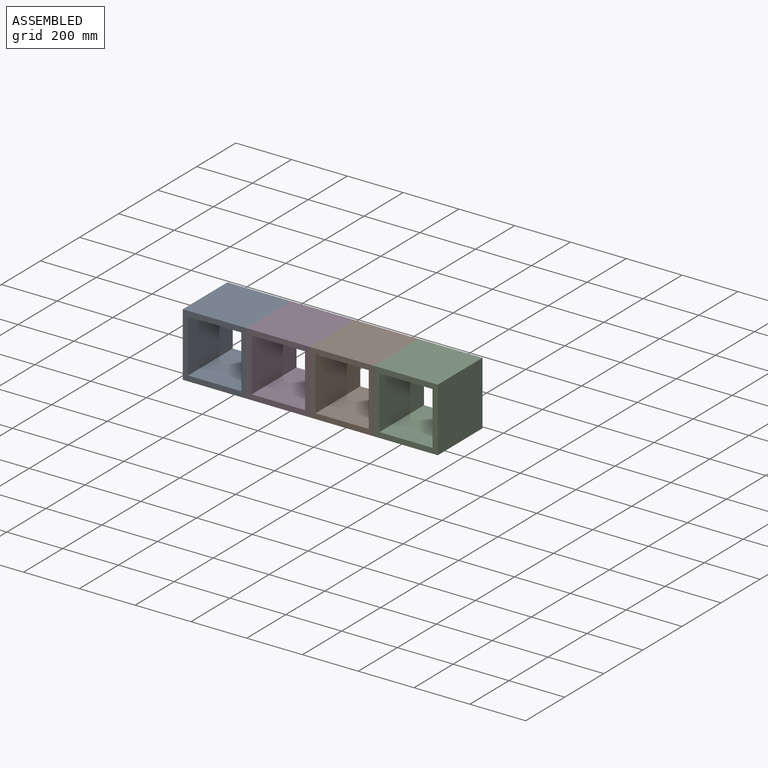
[diagram: assembled view]
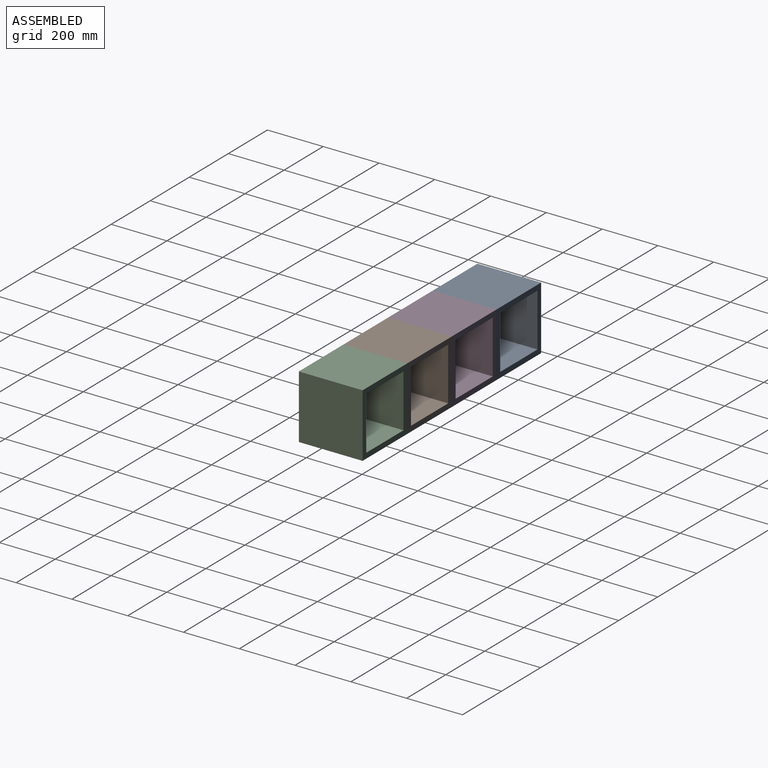
[diagram: assembled view, second angle]
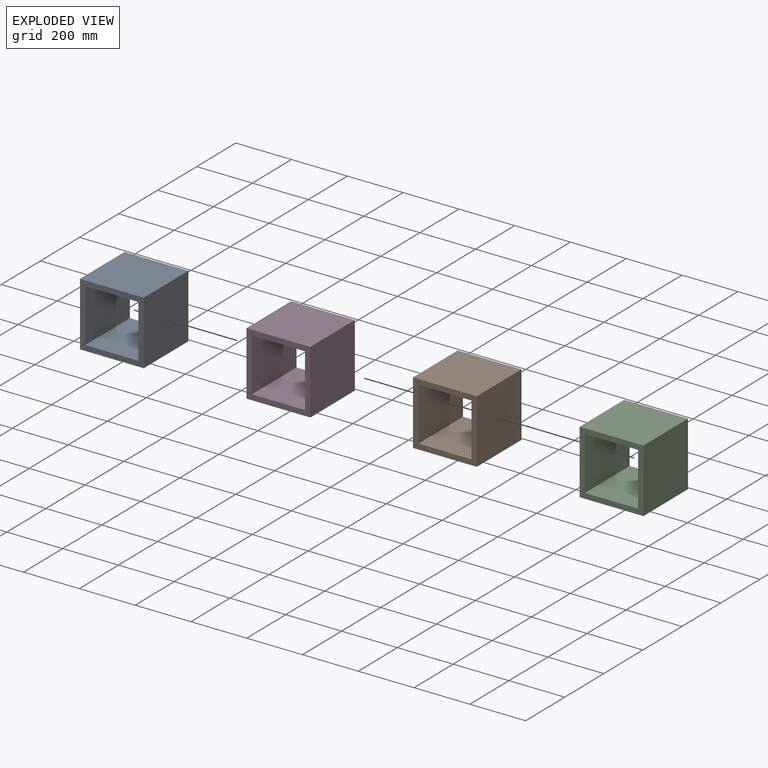
[diagram: exploded view]
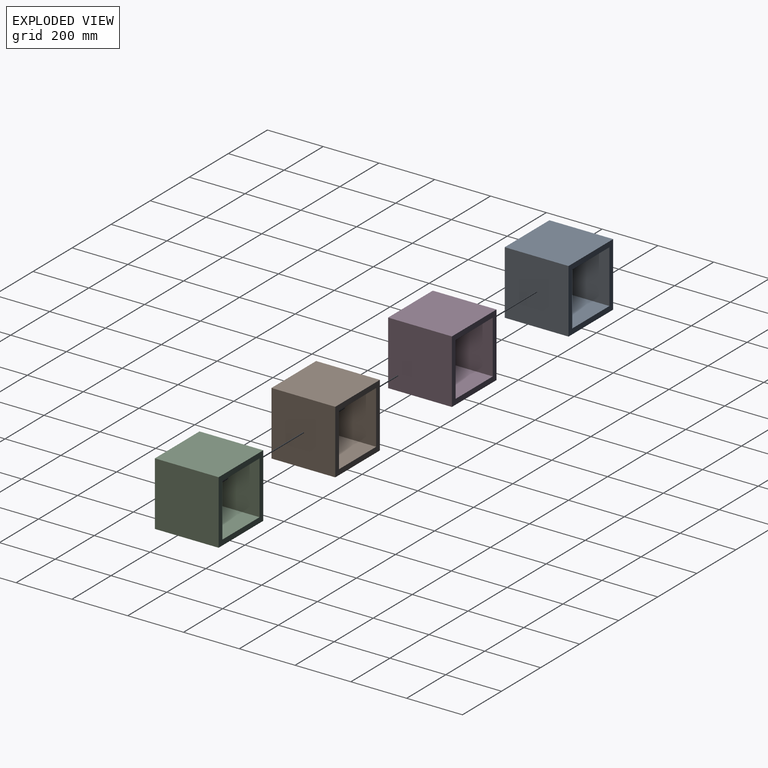
[diagram: exploded view, second angle]
ASSEMBLY  parts=4 mates=3
PART A: 10 faces, bbox 228.6x228.6x228.6 mm
  f0: plane 228.6x228.6mm, normal (1,0,0), area 52258mm2, adj f1,f7,f8,f9
  f1: plane 228.6x228.6mm, normal (0,0,1), area 52258mm2, adj f0,f2,f8,f9
  f2: plane 228.6x228.6mm, normal (-1,0,0), area 52258mm2, adj f1,f7,f8,f9
  f3: plane 228.6x190.5mm, normal (0,0,-1), area 43548.3mm2, adj f4,f6,f8,f9
  f4: plane 228.6x190.5mm, normal (-1,0,0), area 43548.3mm2, adj f3,f5,f8,f9
  f5: plane 228.6x190.5mm, normal (0,0,1), area 43548.3mm2, adj f4,f6,f8,f9
  f6: plane 228.6x190.5mm, normal (1,0,0), area 43548.3mm2, adj f3,f5,f8,f9
  f7: plane 228.6x228.6mm, normal (0,0,-1), area 52258mm2, adj f0,f2,f8,f9
  f8: plane 228.6x228.6mm, normal (0,-1,0), area 15967.7mm2, adj f0,f1,f2,f3,f4,f5,f6,f7
  f9: plane 228.6x228.6mm, normal (0,1,0), area 15967.7mm2, adj f0,f1,f2,f3,f4,f5,f6,f7
PART B: same geometry as A
PART C: same geometry as A
PART D: same geometry as A
PLACE A t=(-451.4,-34.1,-29.65)mm
PLACE B t=(5.8,-34.1,-29.65)mm
PLACE C t=(234.4,-34.1,-29.65)mm
PLACE D t=(-222.8,-34.1,-29.65)mm
MATE fastened B.f2 <-> D.f0  axis (-1,0,0) through (-108.5,-148.4,-29.65)mm
MATE fastened A.f0 <-> D.f2  axis (1,0,0) through (-337.1,-148.4,-29.65)mm
MATE fastened B.f0 <-> C.f2  axis (1,0,0) through (120.1,-148.4,-29.65)mm
